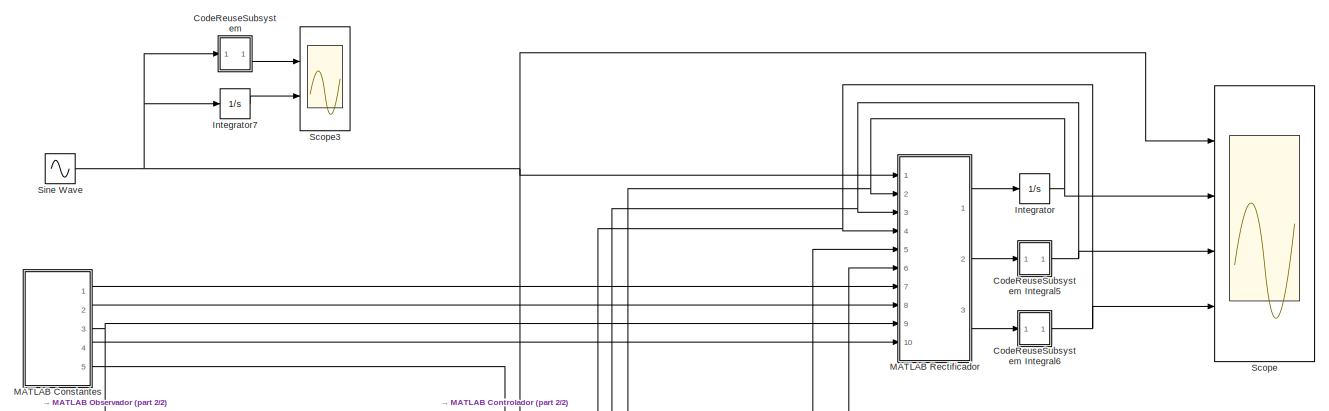
[diagram: root canvas - part 1/2, full width, top band]
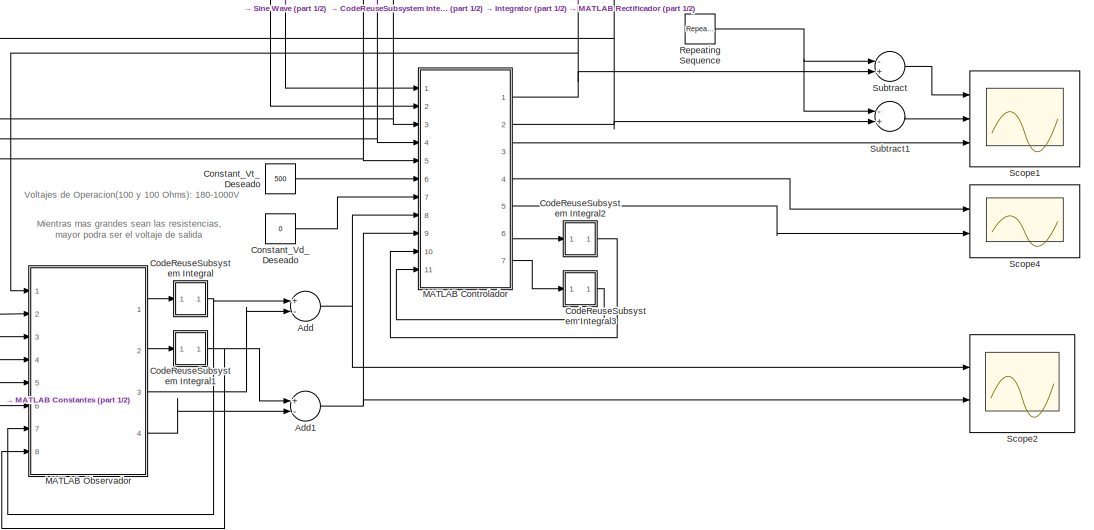
[diagram: root canvas - part 2/2, full width, bottom band]
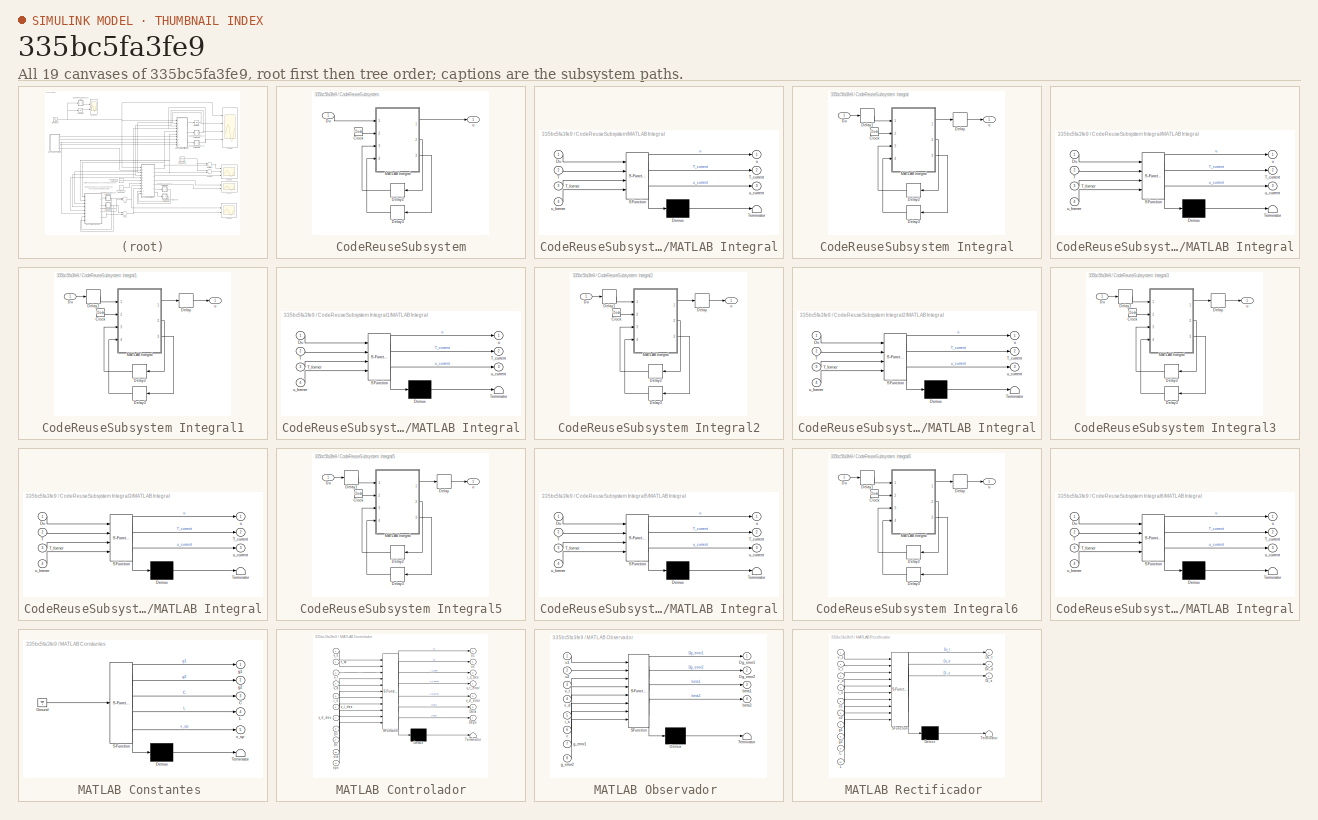
[diagram: thumbnail index - all 19 canvases of the model, root first then tree order]
MODEL slx_335bc5fa3fe9
KIND model
BLOCK [Sum] Add
  InputSameDT = off
  Inputs = +-
  OutDataTypeStr = Inherit: Inherit via internal rule
  Ports = [2, 1]
  SaturateOnIntegerOverflow = off
BLOCK [Sum] Add1
  InputSameDT = off
  Inputs = +-
  OutDataTypeStr = Inherit: Inherit via internal rule
  Ports = [2, 1]
  SaturateOnIntegerOverflow = off
BLOCK [SubSystem] CodeReuseSubsystem
  FunctionWithSeparateData = off
  MaskHideContents = off
  MinAlgLoopOccurrences = off
  Opaque = off
  Ports = [1, 1]
  PropExecContextOutsideSubsystem = off
  RTWFcnNameOpts = Use subsystem name
  RTWFileNameOpts = Use function name
  RTWSystemCode = Reusable function
  RequestExecContextInheritance = off
  TreatAsAtomicUnit = on
BLOCK [SubSystem] CodeReuseSubsystem Integral
  FunctionWithSeparateData = off
  MaskHideContents = off
  MinAlgLoopOccurrences = off
  Opaque = off
  Ports = [1, 1]
  PropExecContextOutsideSubsystem = off
  RTWFcnNameOpts = Use subsystem name
  RTWFileNameOpts = Use function name
  RTWSystemCode = Reusable function
  RequestExecContextInheritance = off
  TreatAsAtomicUnit = on
BLOCK [Clock] CodeReuseSubsystem Integral/Clock
BLOCK [Delay] CodeReuseSubsystem Integral/Delay
  DelayLength = 1
  InitialCondition = 0
  InputPortMap = u0
  Ports = [1, 1]
BLOCK [Delay] CodeReuseSubsystem Integral/Delay1
  DelayLength = 1
  InitialCondition = 0
  InputPortMap = u0
  Ports = [1, 1]
BLOCK [Delay] CodeReuseSubsystem Integral/Delay2
  DelayLength = 1
  InitialCondition = 0
  InputPortMap = u0
  Ports = [1, 1]
BLOCK [Delay] CodeReuseSubsystem Integral/Delay3
  DelayLength = 1
  InitialCondition = 0
  InputPortMap = u0
  Ports = [1, 1]
BLOCK [Inport] CodeReuseSubsystem Integral/Du
  IconDisplay = Port number
BLOCK [SubSystem] CodeReuseSubsystem Integral/MATLAB Integral
  ErrorFcn = Stateflow.Translate.translate
  FunctionWithSeparateData = off
  MaskHideContents = off
  MinAlgLoopOccurrences = off
  Opaque = off
  PermitHierarchicalResolution = ExplicitOnly
  Ports = [4, 3]
  PropExecContextOutsideSubsystem = off
  RTWSystemCode = Auto
  RequestExecContextInheritance = off
  SFBlockType = MATLAB Function
  TreatAsAtomicUnit = on
BLOCK [Demux] CodeReuseSubsystem Integral/MATLAB Integral/ Demux 
  Outputs = 1
  Ports = [1, 1]
BLOCK [S-Function] CodeReuseSubsystem Integral/MATLAB Integral/ SFunction 
  EnableBusSupport = on
  FunctionName = sf_sfun
  PortCounts = [4 4]
  Ports = [4, 4]
  Tag = Stateflow S-Function Tesis_Rectificador_Controlador_Observador_04 6
BLOCK [Terminator] CodeReuseSubsystem Integral/MATLAB Integral/ Terminator 
BLOCK [Inport] CodeReuseSubsystem Integral/MATLAB Integral/Du
  IconDisplay = Port number
BLOCK [Inport] CodeReuseSubsystem Integral/MATLAB Integral/T
  IconDisplay = Port number
  Port = 2
BLOCK [Outport] CodeReuseSubsystem Integral/MATLAB Integral/T_current
  IconDisplay = Port number
  Port = 2
BLOCK [Inport] CodeReuseSubsystem Integral/MATLAB Integral/T_former
  IconDisplay = Port number
  Port = 3
BLOCK [Outport] CodeReuseSubsystem Integral/MATLAB Integral/u
  IconDisplay = Port number
BLOCK [Outport] CodeReuseSubsystem Integral/MATLAB Integral/u_current
  IconDisplay = Port number
  Port = 3
BLOCK [Inport] CodeReuseSubsystem Integral/MATLAB Integral/u_former
  IconDisplay = Port number
  Port = 4
BLOCK [Outport] CodeReuseSubsystem Integral/u
  IconDisplay = Port number
BLOCK [SubSystem] CodeReuseSubsystem Integral1
  FunctionWithSeparateData = off
  MaskHideContents = off
  MinAlgLoopOccurrences = off
  Opaque = off
  Ports = [1, 1]
  PropExecContextOutsideSubsystem = off
  RTWFcnNameOpts = Use subsystem name
  RTWFileNameOpts = Use function name
  RTWSystemCode = Reusable function
  RequestExecContextInheritance = off
  TreatAsAtomicUnit = on
BLOCK [Clock] CodeReuseSubsystem Integral1/Clock
BLOCK [Delay] CodeReuseSubsystem Integral1/Delay
  DelayLength = 1
  InitialCondition = 0
  InputPortMap = u0
  Ports = [1, 1]
BLOCK [Delay] CodeReuseSubsystem Integral1/Delay1
  DelayLength = 1
  InitialCondition = 0
  InputPortMap = u0
  Ports = [1, 1]
BLOCK [Delay] CodeReuseSubsystem Integral1/Delay2
  DelayLength = 1
  InitialCondition = 0
  InputPortMap = u0
  Ports = [1, 1]
BLOCK [Delay] CodeReuseSubsystem Integral1/Delay3
  DelayLength = 1
  InitialCondition = 0
  InputPortMap = u0
  Ports = [1, 1]
BLOCK [Inport] CodeReuseSubsystem Integral1/Du
  IconDisplay = Port number
BLOCK [SubSystem] CodeReuseSubsystem Integral1/MATLAB Integral
  ErrorFcn = Stateflow.Translate.translate
  FunctionWithSeparateData = off
  MaskHideContents = off
  MinAlgLoopOccurrences = off
  Opaque = off
  PermitHierarchicalResolution = ExplicitOnly
  Ports = [4, 3]
  PropExecContextOutsideSubsystem = off
  RTWSystemCode = Auto
  RequestExecContextInheritance = off
  SFBlockType = MATLAB Function
  TreatAsAtomicUnit = on
BLOCK [Demux] CodeReuseSubsystem Integral1/MATLAB Integral/ Demux 
  Outputs = 1
  Ports = [1, 1]
BLOCK [S-Function] CodeReuseSubsystem Integral1/MATLAB Integral/ SFunction 
  EnableBusSupport = on
  FunctionName = sf_sfun
  PortCounts = [4 4]
  Ports = [4, 4]
  Tag = Stateflow S-Function Tesis_Rectificador_Controlador_Observador_04 7
BLOCK [Terminator] CodeReuseSubsystem Integral1/MATLAB Integral/ Terminator 
BLOCK [Inport] CodeReuseSubsystem Integral1/MATLAB Integral/Du
  IconDisplay = Port number
BLOCK [Inport] CodeReuseSubsystem Integral1/MATLAB Integral/T
  IconDisplay = Port number
  Port = 2
BLOCK [Outport] CodeReuseSubsystem Integral1/MATLAB Integral/T_current
  IconDisplay = Port number
  Port = 2
BLOCK [Inport] CodeReuseSubsystem Integral1/MATLAB Integral/T_former
  IconDisplay = Port number
  Port = 3
BLOCK [Outport] CodeReuseSubsystem Integral1/MATLAB Integral/u
  IconDisplay = Port number
BLOCK [Outport] CodeReuseSubsystem Integral1/MATLAB Integral/u_current
  IconDisplay = Port number
  Port = 3
BLOCK [Inport] CodeReuseSubsystem Integral1/MATLAB Integral/u_former
  IconDisplay = Port number
  Port = 4
BLOCK [Outport] CodeReuseSubsystem Integral1/u
  IconDisplay = Port number
BLOCK [SubSystem] CodeReuseSubsystem Integral2
  FunctionWithSeparateData = off
  MaskHideContents = off
  MinAlgLoopOccurrences = off
  Opaque = off
  Ports = [1, 1]
  PropExecContextOutsideSubsystem = off
  RTWFcnNameOpts = Use subsystem name
  RTWFileNameOpts = Use function name
  RTWSystemCode = Reusable function
  RequestExecContextInheritance = off
  TreatAsAtomicUnit = on
BLOCK [Clock] CodeReuseSubsystem Integral2/Clock
BLOCK [Delay] CodeReuseSubsystem Integral2/Delay
  DelayLength = 1
  InitialCondition = 0
  InputPortMap = u0
  Ports = [1, 1]
BLOCK [Delay] CodeReuseSubsystem Integral2/Delay1
  DelayLength = 1
  InitialCondition = 0
  InputPortMap = u0
  Ports = [1, 1]
BLOCK [Delay] CodeReuseSubsystem Integral2/Delay2
  DelayLength = 1
  InitialCondition = 0
  InputPortMap = u0
  Ports = [1, 1]
BLOCK [Delay] CodeReuseSubsystem Integral2/Delay3
  DelayLength = 1
  InitialCondition = 0
  InputPortMap = u0
  Ports = [1, 1]
BLOCK [Inport] CodeReuseSubsystem Integral2/Du
  IconDisplay = Port number
BLOCK [SubSystem] CodeReuseSubsystem Integral2/MATLAB Integral
  ErrorFcn = Stateflow.Translate.translate
  FunctionWithSeparateData = off
  MaskHideContents = off
  MinAlgLoopOccurrences = off
  Opaque = off
  PermitHierarchicalResolution = ExplicitOnly
  Ports = [4, 3]
  PropExecContextOutsideSubsystem = off
  RTWSystemCode = Auto
  RequestExecContextInheritance = off
  SFBlockType = MATLAB Function
  TreatAsAtomicUnit = on
BLOCK [Demux] CodeReuseSubsystem Integral2/MATLAB Integral/ Demux 
  Outputs = 1
  Ports = [1, 1]
BLOCK [S-Function] CodeReuseSubsystem Integral2/MATLAB Integral/ SFunction 
  EnableBusSupport = on
  FunctionName = sf_sfun
  PortCounts = [4 4]
  Ports = [4, 4]
  Tag = Stateflow S-Function Tesis_Rectificador_Controlador_Observador_04 8
BLOCK [Terminator] CodeReuseSubsystem Integral2/MATLAB Integral/ Terminator 
BLOCK [Inport] CodeReuseSubsystem Integral2/MATLAB Integral/Du
  IconDisplay = Port number
BLOCK [Inport] CodeReuseSubsystem Integral2/MATLAB Integral/T
  IconDisplay = Port number
  Port = 2
BLOCK [Outport] CodeReuseSubsystem Integral2/MATLAB Integral/T_current
  IconDisplay = Port number
  Port = 2
BLOCK [Inport] CodeReuseSubsystem Integral2/MATLAB Integral/T_former
  IconDisplay = Port number
  Port = 3
BLOCK [Outport] CodeReuseSubsystem Integral2/MATLAB Integral/u
  IconDisplay = Port number
BLOCK [Outport] CodeReuseSubsystem Integral2/MATLAB Integral/u_current
  IconDisplay = Port number
  Port = 3
BLOCK [Inport] CodeReuseSubsystem Integral2/MATLAB Integral/u_former
  IconDisplay = Port number
  Port = 4
BLOCK [Outport] CodeReuseSubsystem Integral2/u
  IconDisplay = Port number
BLOCK [SubSystem] CodeReuseSubsystem Integral3
  FunctionWithSeparateData = off
  MaskHideContents = off
  MinAlgLoopOccurrences = off
  Opaque = off
  Ports = [1, 1]
  PropExecContextOutsideSubsystem = off
  RTWFcnNameOpts = Use subsystem name
  RTWFileNameOpts = Use function name
  RTWSystemCode = Reusable function
  RequestExecContextInheritance = off
  TreatAsAtomicUnit = on
BLOCK [Clock] CodeReuseSubsystem Integral3/Clock
BLOCK [Delay] CodeReuseSubsystem Integral3/Delay
  DelayLength = 1
  InitialCondition = 0
  InputPortMap = u0
  Ports = [1, 1]
BLOCK [Delay] CodeReuseSubsystem Integral3/Delay1
  DelayLength = 1
  InitialCondition = 0
  InputPortMap = u0
  Ports = [1, 1]
BLOCK [Delay] CodeReuseSubsystem Integral3/Delay2
  DelayLength = 1
  InitialCondition = 0
  InputPortMap = u0
  Ports = [1, 1]
BLOCK [Delay] CodeReuseSubsystem Integral3/Delay3
  DelayLength = 1
  InitialCondition = 0
  InputPortMap = u0
  Ports = [1, 1]
BLOCK [Inport] CodeReuseSubsystem Integral3/Du
  IconDisplay = Port number
BLOCK [SubSystem] CodeReuseSubsystem Integral3/MATLAB Integral
  ErrorFcn = Stateflow.Translate.translate
  FunctionWithSeparateData = off
  MaskHideContents = off
  MinAlgLoopOccurrences = off
  Opaque = off
  PermitHierarchicalResolution = ExplicitOnly
  Ports = [4, 3]
  PropExecContextOutsideSubsystem = off
  RTWSystemCode = Auto
  RequestExecContextInheritance = off
  SFBlockType = MATLAB Function
  TreatAsAtomicUnit = on
BLOCK [Demux] CodeReuseSubsystem Integral3/MATLAB Integral/ Demux 
  Outputs = 1
  Ports = [1, 1]
BLOCK [S-Function] CodeReuseSubsystem Integral3/MATLAB Integral/ SFunction 
  EnableBusSupport = on
  FunctionName = sf_sfun
  PortCounts = [4 4]
  Ports = [4, 4]
  Tag = Stateflow S-Function Tesis_Rectificador_Controlador_Observador_04 9
BLOCK [Terminator] CodeReuseSubsystem Integral3/MATLAB Integral/ Terminator 
BLOCK [Inport] CodeReuseSubsystem Integral3/MATLAB Integral/Du
  IconDisplay = Port number
BLOCK [Inport] CodeReuseSubsystem Integral3/MATLAB Integral/T
  IconDisplay = Port number
  Port = 2
BLOCK [Outport] CodeReuseSubsystem Integral3/MATLAB Integral/T_current
  IconDisplay = Port number
  Port = 2
BLOCK [Inport] CodeReuseSubsystem Integral3/MATLAB Integral/T_former
  IconDisplay = Port number
  Port = 3
BLOCK [Outport] CodeReuseSubsystem Integral3/MATLAB Integral/u
  IconDisplay = Port number
BLOCK [Outport] CodeReuseSubsystem Integral3/MATLAB Integral/u_current
  IconDisplay = Port number
  Port = 3
BLOCK [Inport] CodeReuseSubsystem Integral3/MATLAB Integral/u_former
  IconDisplay = Port number
  Port = 4
BLOCK [Outport] CodeReuseSubsystem Integral3/u
  IconDisplay = Port number
BLOCK [SubSystem] CodeReuseSubsystem Integral5
  FunctionWithSeparateData = off
  MaskHideContents = off
  MinAlgLoopOccurrences = off
  Opaque = off
  Ports = [1, 1]
  PropExecContextOutsideSubsystem = off
  RTWFcnNameOpts = Use subsystem name
  RTWFileNameOpts = Use function name
  RTWSystemCode = Reusable function
  RequestExecContextInheritance = off
  TreatAsAtomicUnit = on
BLOCK [Clock] CodeReuseSubsystem Integral5/Clock
BLOCK [Delay] CodeReuseSubsystem Integral5/Delay
  DelayLength = 1
  InitialCondition = 1
  InputPortMap = u0
  Ports = [1, 1]
BLOCK [Delay] CodeReuseSubsystem Integral5/Delay1
  DelayLength = 1
  InitialCondition = 0
  InputPortMap = u0
  Ports = [1, 1]
BLOCK [Delay] CodeReuseSubsystem Integral5/Delay2
  DelayLength = 1
  InitialCondition = 0
  InputPortMap = u0
  Ports = [1, 1]
BLOCK [Delay] CodeReuseSubsystem Integral5/Delay3
  DelayLength = 1
  InitialCondition = 0
  InputPortMap = u0
  Ports = [1, 1]
BLOCK [Inport] CodeReuseSubsystem Integral5/Du
  IconDisplay = Port number
BLOCK [SubSystem] CodeReuseSubsystem Integral5/MATLAB Integral
  ErrorFcn = Stateflow.Translate.translate
  FunctionWithSeparateData = off
  MaskHideContents = off
  MinAlgLoopOccurrences = off
  Opaque = off
  PermitHierarchicalResolution = ExplicitOnly
  Ports = [4, 3]
  PropExecContextOutsideSubsystem = off
  RTWSystemCode = Auto
  RequestExecContextInheritance = off
  SFBlockType = MATLAB Function
  TreatAsAtomicUnit = on
BLOCK [Demux] CodeReuseSubsystem Integral5/MATLAB Integral/ Demux 
  Outputs = 1
  Ports = [1, 1]
BLOCK [S-Function] CodeReuseSubsystem Integral5/MATLAB Integral/ SFunction 
  EnableBusSupport = on
  FunctionName = sf_sfun
  PortCounts = [4 4]
  Ports = [4, 4]
  Tag = Stateflow S-Function Tesis_Rectificador_Controlador_Observador_04 11
BLOCK [Terminator] CodeReuseSubsystem Integral5/MATLAB Integral/ Terminator 
BLOCK [Inport] CodeReuseSubsystem Integral5/MATLAB Integral/Du
  IconDisplay = Port number
BLOCK [Inport] CodeReuseSubsystem Integral5/MATLAB Integral/T
  IconDisplay = Port number
  Port = 2
BLOCK [Outport] CodeReuseSubsystem Integral5/MATLAB Integral/T_current
  IconDisplay = Port number
  Port = 2
BLOCK [Inport] CodeReuseSubsystem Integral5/MATLAB Integral/T_former
  IconDisplay = Port number
  Port = 3
BLOCK [Outport] CodeReuseSubsystem Integral5/MATLAB Integral/u
  IconDisplay = Port number
BLOCK [Outport] CodeReuseSubsystem Integral5/MATLAB Integral/u_current
  IconDisplay = Port number
  Port = 3
BLOCK [Inport] CodeReuseSubsystem Integral5/MATLAB Integral/u_former
  IconDisplay = Port number
  Port = 4
BLOCK [Outport] CodeReuseSubsystem Integral5/u
  IconDisplay = Port number
BLOCK [SubSystem] CodeReuseSubsystem Integral6
  FunctionWithSeparateData = off
  MaskHideContents = off
  MinAlgLoopOccurrences = off
  Opaque = off
  Ports = [1, 1]
  PropExecContextOutsideSubsystem = off
  RTWFcnNameOpts = Use subsystem name
  RTWFileNameOpts = Use function name
  RTWSystemCode = Reusable function
  RequestExecContextInheritance = off
  TreatAsAtomicUnit = on
BLOCK [Clock] CodeReuseSubsystem Integral6/Clock
BLOCK [Delay] CodeReuseSubsystem Integral6/Delay
  DelayLength = 1
  InitialCondition = 1
  InputPortMap = u0
  Ports = [1, 1]
BLOCK [Delay] CodeReuseSubsystem Integral6/Delay1
  DelayLength = 1
  InitialCondition = 0
  InputPortMap = u0
  Ports = [1, 1]
BLOCK [Delay] CodeReuseSubsystem Integral6/Delay2
  DelayLength = 1
  InitialCondition = 0
  InputPortMap = u0
  Ports = [1, 1]
BLOCK [Delay] CodeReuseSubsystem Integral6/Delay3
  DelayLength = 1
  InitialCondition = 0
  InputPortMap = u0
  Ports = [1, 1]
BLOCK [Inport] CodeReuseSubsystem Integral6/Du
  IconDisplay = Port number
BLOCK [SubSystem] CodeReuseSubsystem Integral6/MATLAB Integral
  ErrorFcn = Stateflow.Translate.translate
  FunctionWithSeparateData = off
  MaskHideContents = off
  MinAlgLoopOccurrences = off
  Opaque = off
  PermitHierarchicalResolution = ExplicitOnly
  Ports = [4, 3]
  PropExecContextOutsideSubsystem = off
  RTWSystemCode = Auto
  RequestExecContextInheritance = off
  SFBlockType = MATLAB Function
  TreatAsAtomicUnit = on
BLOCK [Demux] CodeReuseSubsystem Integral6/MATLAB Integral/ Demux 
  Outputs = 1
  Ports = [1, 1]
BLOCK [S-Function] CodeReuseSubsystem Integral6/MATLAB Integral/ SFunction 
  EnableBusSupport = on
  FunctionName = sf_sfun
  PortCounts = [4 4]
  Ports = [4, 4]
  Tag = Stateflow S-Function Tesis_Rectificador_Controlador_Observador_04 12
BLOCK [Terminator] CodeReuseSubsystem Integral6/MATLAB Integral/ Terminator 
BLOCK [Inport] CodeReuseSubsystem Integral6/MATLAB Integral/Du
  IconDisplay = Port number
BLOCK [Inport] CodeReuseSubsystem Integral6/MATLAB Integral/T
  IconDisplay = Port number
  Port = 2
BLOCK [Outport] CodeReuseSubsystem Integral6/MATLAB Integral/T_current
  IconDisplay = Port number
  Port = 2
BLOCK [Inport] CodeReuseSubsystem Integral6/MATLAB Integral/T_former
  IconDisplay = Port number
  Port = 3
BLOCK [Outport] CodeReuseSubsystem Integral6/MATLAB Integral/u
  IconDisplay = Port number
BLOCK [Outport] CodeReuseSubsystem Integral6/MATLAB Integral/u_current
  IconDisplay = Port number
  Port = 3
BLOCK [Inport] CodeReuseSubsystem Integral6/MATLAB Integral/u_former
  IconDisplay = Port number
  Port = 4
BLOCK [Outport] CodeReuseSubsystem Integral6/u
  IconDisplay = Port number
BLOCK [Clock] CodeReuseSubsystem/Clock
BLOCK [Delay] CodeReuseSubsystem/Delay2
  DelayLength = 1
  InitialCondition = 0
  InputPortMap = u0
  Ports = [1, 1]
BLOCK [Delay] CodeReuseSubsystem/Delay3
  DelayLength = 1
  InitialCondition = 0
  InputPortMap = u0
  Ports = [1, 1]
BLOCK [Inport] CodeReuseSubsystem/Du
  IconDisplay = Port number
BLOCK [SubSystem] CodeReuseSubsystem/MATLAB Integral
  ErrorFcn = Stateflow.Translate.translate
  FunctionWithSeparateData = off
  MaskHideContents = off
  MinAlgLoopOccurrences = off
  Opaque = off
  PermitHierarchicalResolution = ExplicitOnly
  Ports = [4, 3]
  PropExecContextOutsideSubsystem = off
  RTWSystemCode = Auto
  RequestExecContextInheritance = off
  SFBlockType = MATLAB Function
  TreatAsAtomicUnit = on
BLOCK [Demux] CodeReuseSubsystem/MATLAB Integral/ Demux 
  Outputs = 1
  Ports = [1, 1]
BLOCK [S-Function] CodeReuseSubsystem/MATLAB Integral/ SFunction 
  EnableBusSupport = on
  FunctionName = sf_sfun
  PortCounts = [4 4]
  Ports = [4, 4]
  Tag = Stateflow S-Function Tesis_Rectificador_Controlador_Observador_04 3
BLOCK [Terminator] CodeReuseSubsystem/MATLAB Integral/ Terminator 
BLOCK [Inport] CodeReuseSubsystem/MATLAB Integral/Du
  IconDisplay = Port number
BLOCK [Inport] CodeReuseSubsystem/MATLAB Integral/T
  IconDisplay = Port number
  Port = 2
BLOCK [Outport] CodeReuseSubsystem/MATLAB Integral/T_current
  IconDisplay = Port number
  Port = 2
BLOCK [Inport] CodeReuseSubsystem/MATLAB Integral/T_former
  IconDisplay = Port number
  Port = 3
BLOCK [Outport] CodeReuseSubsystem/MATLAB Integral/u
  IconDisplay = Port number
BLOCK [Outport] CodeReuseSubsystem/MATLAB Integral/u_current
  IconDisplay = Port number
  Port = 3
BLOCK [Inport] CodeReuseSubsystem/MATLAB Integral/u_former
  IconDisplay = Port number
  Port = 4
BLOCK [Outport] CodeReuseSubsystem/u
  IconDisplay = Port number
BLOCK [Constant] Constant_Vd_Deseado
  Value = 0
BLOCK [Constant] Constant_Vt_Deseado
  Value = 500
BLOCK [Integrator] Integrator
  Ports = [1, 1]
BLOCK [Integrator] Integrator7
  InitialCondition = 0.02
  Ports = [1, 1]
BLOCK [SubSystem] MATLAB Constantes 
  ErrorFcn = Stateflow.Translate.translate
  FunctionWithSeparateData = off
  MaskHideContents = off
  MinAlgLoopOccurrences = off
  Opaque = off
  PermitHierarchicalResolution = ExplicitOnly
  Ports = [0, 5]
  PropExecContextOutsideSubsystem = off
  RTWSystemCode = Auto
  RequestExecContextInheritance = off
  SFBlockType = MATLAB Function
  TreatAsAtomicUnit = on
BLOCK [Demux] MATLAB Constantes / Demux 
  Outputs = 1
  Ports = [1, 1]
BLOCK [Ground] MATLAB Constantes / Ground 
BLOCK [S-Function] MATLAB Constantes / SFunction 
  EnableBusSupport = on
  FunctionName = sf_sfun
  PortCounts = [1 6]
  Ports = [1, 6]
  Tag = Stateflow S-Function Tesis_Rectificador_Controlador_Observador_04 4
BLOCK [Terminator] MATLAB Constantes / Terminator 
BLOCK [Outport] MATLAB Constantes /C
  IconDisplay = Port number
  Port = 3
BLOCK [Outport] MATLAB Constantes /L
  IconDisplay = Port number
  Port = 4
BLOCK [Outport] MATLAB Constantes /g1
  IconDisplay = Port number
BLOCK [Outport] MATLAB Constantes /g2
  IconDisplay = Port number
  Port = 2
BLOCK [Outport] MATLAB Constantes /v_sp
  IconDisplay = Port number
  Port = 5
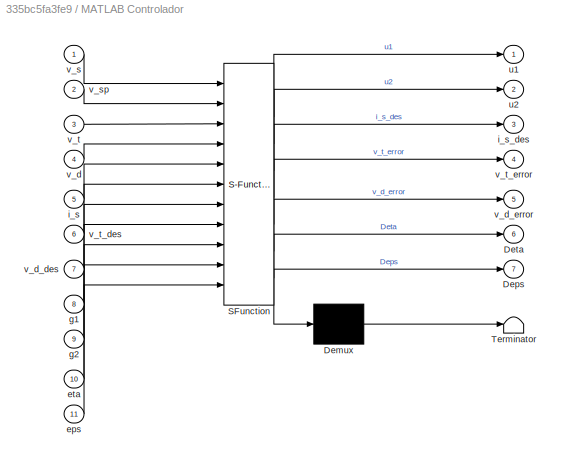
BLOCK [SubSystem] MATLAB Controlador
  ErrorFcn = Stateflow.Translate.translate
  FunctionWithSeparateData = off
  MaskHideContents = off
  MinAlgLoopOccurrences = off
  Opaque = off
  PermitHierarchicalResolution = ExplicitOnly
  Ports = [11, 7]
  PropExecContextOutsideSubsystem = off
  RTWSystemCode = Auto
  RequestExecContextInheritance = off
  SFBlockType = MATLAB Function
  TreatAsAtomicUnit = on
BLOCK [Demux] MATLAB Controlador/ Demux 
  Outputs = 1
  Ports = [1, 1]
BLOCK [S-Function] MATLAB Controlador/ SFunction 
  EnableBusSupport = on
  FunctionName = sf_sfun
  PortCounts = [11 8]
  Ports = [11, 8]
  Tag = Stateflow S-Function Tesis_Rectificador_Controlador_Observador_04 1
BLOCK [Terminator] MATLAB Controlador/ Terminator 
BLOCK [Outport] MATLAB Controlador/Deps
  IconDisplay = Port number
  Port = 7
BLOCK [Outport] MATLAB Controlador/Deta
  IconDisplay = Port number
  Port = 6
BLOCK [Inport] MATLAB Controlador/eps
  IconDisplay = Port number
  Port = 11
BLOCK [Inport] MATLAB Controlador/eta
  IconDisplay = Port number
  Port = 10
BLOCK [Inport] MATLAB Controlador/g1
  IconDisplay = Port number
  Port = 8
BLOCK [Inport] MATLAB Controlador/g2
  IconDisplay = Port number
  Port = 9
BLOCK [Inport] MATLAB Controlador/i_s
  IconDisplay = Port number
  Port = 5
BLOCK [Outport] MATLAB Controlador/i_s_des
  IconDisplay = Port number
  Port = 3
BLOCK [Outport] MATLAB Controlador/u1
  IconDisplay = Port number
BLOCK [Outport] MATLAB Controlador/u2
  IconDisplay = Port number
  Port = 2
BLOCK [Inport] MATLAB Controlador/v_d
  IconDisplay = Port number
  Port = 4
BLOCK [Inport] MATLAB Controlador/v_d_des
  IconDisplay = Port number
  Port = 7
BLOCK [Outport] MATLAB Controlador/v_d_error
  IconDisplay = Port number
  Port = 5
BLOCK [Inport] MATLAB Controlador/v_s
  IconDisplay = Port number
BLOCK [Inport] MATLAB Controlador/v_sp
  IconDisplay = Port number
  Port = 2
BLOCK [Inport] MATLAB Controlador/v_t
  IconDisplay = Port number
  Port = 3
BLOCK [Inport] MATLAB Controlador/v_t_des
  IconDisplay = Port number
  Port = 6
BLOCK [Outport] MATLAB Controlador/v_t_error
  IconDisplay = Port number
  Port = 4
BLOCK [SubSystem] MATLAB Observador 
  ErrorFcn = Stateflow.Translate.translate
  FunctionWithSeparateData = off
  MaskHideContents = off
  MinAlgLoopOccurrences = off
  Opaque = off
  PermitHierarchicalResolution = ExplicitOnly
  Ports = [8, 4]
  PropExecContextOutsideSubsystem = off
  RTWSystemCode = Auto
  RequestExecContextInheritance = off
  SFBlockType = MATLAB Function
  TreatAsAtomicUnit = on
BLOCK [Demux] MATLAB Observador / Demux 
  Outputs = 1
  Ports = [1, 1]
BLOCK [S-Function] MATLAB Observador / SFunction 
  EnableBusSupport = on
  FunctionName = sf_sfun
  PortCounts = [8 5]
  Ports = [8, 5]
  Tag = Stateflow S-Function Tesis_Rectificador_Controlador_Observador_04 5
BLOCK [Terminator] MATLAB Observador / Terminator 
BLOCK [Outport] MATLAB Observador /Dg_error1
  IconDisplay = Port number
BLOCK [Outport] MATLAB Observador /Dg_error2
  IconDisplay = Port number
  Port = 2
BLOCK [Outport] MATLAB Observador /beta1
  IconDisplay = Port number
  Port = 3
BLOCK [Outport] MATLAB Observador /beta2
  IconDisplay = Port number
  Port = 4
BLOCK [Inport] MATLAB Observador /c
  IconDisplay = Port number
  Port = 6
BLOCK [Inport] MATLAB Observador /g_error1
  IconDisplay = Port number
  Port = 7
BLOCK [Inport] MATLAB Observador /g_error2
  IconDisplay = Port number
  Port = 8
BLOCK [Inport] MATLAB Observador /i_s
  IconDisplay = Port number
  Port = 5
BLOCK [Inport] MATLAB Observador /u1
  IconDisplay = Port number
BLOCK [Inport] MATLAB Observador /u2
  IconDisplay = Port number
  Port = 2
BLOCK [Inport] MATLAB Observador /v_d
  IconDisplay = Port number
  Port = 4
BLOCK [Inport] MATLAB Observador /v_t
  IconDisplay = Port number
  Port = 3
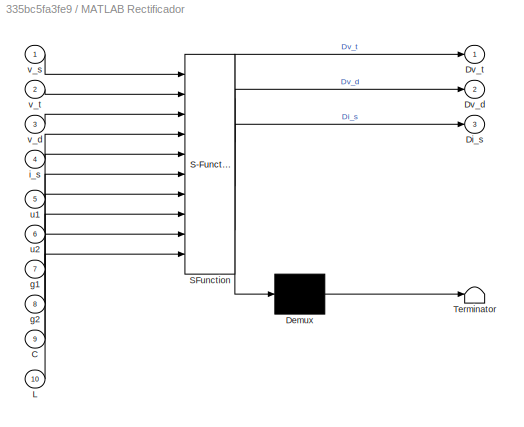
BLOCK [SubSystem] MATLAB Rectificador 
  ErrorFcn = Stateflow.Translate.translate
  FunctionWithSeparateData = off
  MaskHideContents = off
  MinAlgLoopOccurrences = off
  Opaque = off
  PermitHierarchicalResolution = ExplicitOnly
  Ports = [10, 3]
  PropExecContextOutsideSubsystem = off
  RTWSystemCode = Auto
  RequestExecContextInheritance = off
  SFBlockType = MATLAB Function
  TreatAsAtomicUnit = on
BLOCK [Demux] MATLAB Rectificador / Demux 
  Outputs = 1
  Ports = [1, 1]
BLOCK [S-Function] MATLAB Rectificador / SFunction 
  EnableBusSupport = on
  FunctionName = sf_sfun
  PortCounts = [10 4]
  Ports = [10, 4]
  Tag = Stateflow S-Function Tesis_Rectificador_Controlador_Observador_04 2
BLOCK [Terminator] MATLAB Rectificador / Terminator 
BLOCK [Inport] MATLAB Rectificador /C
  IconDisplay = Port number
  Port = 9
BLOCK [Outport] MATLAB Rectificador /Di_s
  IconDisplay = Port number
  Port = 3
BLOCK [Outport] MATLAB Rectificador /Dv_d
  IconDisplay = Port number
  Port = 2
BLOCK [Outport] MATLAB Rectificador /Dv_t
  IconDisplay = Port number
BLOCK [Inport] MATLAB Rectificador /L
  IconDisplay = Port number
  Port = 10
BLOCK [Inport] MATLAB Rectificador /g1
  IconDisplay = Port number
  Port = 7
BLOCK [Inport] MATLAB Rectificador /g2
  IconDisplay = Port number
  Port = 8
BLOCK [Inport] MATLAB Rectificador /i_s
  IconDisplay = Port number
  Port = 4
BLOCK [Inport] MATLAB Rectificador /u1
  IconDisplay = Port number
  Port = 5
BLOCK [Inport] MATLAB Rectificador /u2
  IconDisplay = Port number
  Port = 6
BLOCK [Inport] MATLAB Rectificador /v_d
  IconDisplay = Port number
  Port = 3
BLOCK [Inport] MATLAB Rectificador /v_s
  IconDisplay = Port number
BLOCK [Inport] MATLAB Rectificador /v_t
  IconDisplay = Port number
  Port = 2
BLOCK [Reference] Repeating Sequence  REF=simulink/Sources/Repeating
Sequence
  Ports = [0, 1]
  SourceBlock = simulink/Sources/Repeating\nSequence
  SourceType = Repeating table
  rep_seq_t = [0 1.655e-5]
  rep_seq_y = [0 1]
BLOCK [Scope] Scope
  DataFormat = StructureWithTime
  Floating = off
  LimitDataPoints = off
  NumInputPorts = 4
  Ports = [4]
  SampleTime = 0
  ShowLegends = off
  TimeRange = 0.5
  YMax = 200~600~-1.325~25
  YMin = -200~425~-1.525~-30
  ZoomMode = yonly
BLOCK [Scope] Scope1
  DataFormat = StructureWithTime
  Floating = off
  LimitDataPoints = off
  NumInputPorts = 3
  Ports = [3]
  SampleTime = 0
  SaveName = ScopeData1
  ShowLegends = off
  TimeRange = 1
  YMax = 350~350~1.5
  YMin = -350~-350~-1.5
  ZoomMode = xonly
BLOCK [Scope] Scope2
  DataFormat = StructureWithTime
  Floating = off
  LimitDataPoints = off
  NumInputPorts = 2
  Ports = [2]
  SampleTime = 0
  SaveName = ScopeData3
  ShowLegends = off
  TimeRange = 0.7000000000000001
  YMax = 0.012~0.02
  YMin = -0.002~-0.005
  ZoomMode = yonly
BLOCK [Scope] Scope3
  DataFormat = StructureWithTime
  Floating = off
  LimitDataPoints = off
  NumInputPorts = 2
  Ports = [2]
  SampleTime = 0
  SaveName = ScopeData4
  ShowLegends = off
  YMax = 5~5
  YMin = -5~-5
  ZoomMode = yonly
BLOCK [Scope] Scope4
  DataFormat = StructureWithTime
  Floating = off
  LimitDataPoints = off
  NumInputPorts = 2
  Ports = [2]
  SampleTime = 0
  SaveName = ScopeData2
  ShowLegends = off
  YMax = -118~-0.945
  YMin = -129~-1.035
BLOCK [Sin] Sine Wave
  Amplitude = 180
  Frequency = 120*pi
  Ports = [0, 1]
  SampleTime = 0
BLOCK [Sum] Subtract
  InputSameDT = off
  Inputs = -+
  OutDataTypeStr = Inherit: Inherit via internal rule
  Ports = [2, 1]
  SaturateOnIntegerOverflow = off
BLOCK [Sum] Subtract1
  InputSameDT = off
  Inputs = -+
  OutDataTypeStr = Inherit: Inherit via internal rule
  Ports = [2, 1]
  SaturateOnIntegerOverflow = off
ANNOTATION (root): Mientras mas grandes sean las resistencias, mayor podra ser el voltaje de salida
ANNOTATION (root): Voltajes de Operacion(100 y 100 Ohms): 180-1000V
NET Add1:1 -> MATLAB Controlador:9, Scope2:2
NET Add:1 -> MATLAB Controlador:8, Scope2:1
LINE CodeReuseSubsystem Integral/Clock:1 -> CodeReuseSubsystem Integral/MATLAB Integral:2
LINE CodeReuseSubsystem Integral/Delay1:1 -> CodeReuseSubsystem Integral/MATLAB Integral:1
LINE CodeReuseSubsystem Integral/Delay2:1 -> CodeReuseSubsystem Integral/MATLAB Integral:3
LINE CodeReuseSubsystem Integral/Delay3:1 -> CodeReuseSubsystem Integral/MATLAB Integral:4
LINE CodeReuseSubsystem Integral/Delay:1 -> CodeReuseSubsystem Integral/u:1
LINE CodeReuseSubsystem Integral/Du:1 -> CodeReuseSubsystem Integral/Delay1:1
LINE CodeReuseSubsystem Integral/MATLAB Integral:1 -> CodeReuseSubsystem Integral/Delay:1
LINE CodeReuseSubsystem Integral/MATLAB Integral:2 -> CodeReuseSubsystem Integral/Delay2:1
LINE CodeReuseSubsystem Integral/MATLAB Integral:3 -> CodeReuseSubsystem Integral/Delay3:1
LINE CodeReuseSubsystem Integral1/Clock:1 -> CodeReuseSubsystem Integral1/MATLAB Integral:2
LINE CodeReuseSubsystem Integral1/Delay1:1 -> CodeReuseSubsystem Integral1/MATLAB Integral:1
LINE CodeReuseSubsystem Integral1/Delay2:1 -> CodeReuseSubsystem Integral1/MATLAB Integral:3
LINE CodeReuseSubsystem Integral1/Delay3:1 -> CodeReuseSubsystem Integral1/MATLAB Integral:4
LINE CodeReuseSubsystem Integral1/Delay:1 -> CodeReuseSubsystem Integral1/u:1
LINE CodeReuseSubsystem Integral1/Du:1 -> CodeReuseSubsystem Integral1/Delay1:1
LINE CodeReuseSubsystem Integral1/MATLAB Integral:1 -> CodeReuseSubsystem Integral1/Delay:1
LINE CodeReuseSubsystem Integral1/MATLAB Integral:2 -> CodeReuseSubsystem Integral1/Delay2:1
LINE CodeReuseSubsystem Integral1/MATLAB Integral:3 -> CodeReuseSubsystem Integral1/Delay3:1
NET CodeReuseSubsystem Integral1:1 -> Add1:1, MATLAB Observador :8
LINE CodeReuseSubsystem Integral2/Clock:1 -> CodeReuseSubsystem Integral2/MATLAB Integral:2
LINE CodeReuseSubsystem Integral2/Delay1:1 -> CodeReuseSubsystem Integral2/MATLAB Integral:1
LINE CodeReuseSubsystem Integral2/Delay2:1 -> CodeReuseSubsystem Integral2/MATLAB Integral:3
LINE CodeReuseSubsystem Integral2/Delay3:1 -> CodeReuseSubsystem Integral2/MATLAB Integral:4
LINE CodeReuseSubsystem Integral2/Delay:1 -> CodeReuseSubsystem Integral2/u:1
LINE CodeReuseSubsystem Integral2/Du:1 -> CodeReuseSubsystem Integral2/Delay1:1
LINE CodeReuseSubsystem Integral2/MATLAB Integral:1 -> CodeReuseSubsystem Integral2/Delay:1
LINE CodeReuseSubsystem Integral2/MATLAB Integral:2 -> CodeReuseSubsystem Integral2/Delay2:1
LINE CodeReuseSubsystem Integral2/MATLAB Integral:3 -> CodeReuseSubsystem Integral2/Delay3:1
LINE CodeReuseSubsystem Integral2:1 -> MATLAB Controlador:10
LINE CodeReuseSubsystem Integral3/Clock:1 -> CodeReuseSubsystem Integral3/MATLAB Integral:2
LINE CodeReuseSubsystem Integral3/Delay1:1 -> CodeReuseSubsystem Integral3/MATLAB Integral:1
LINE CodeReuseSubsystem Integral3/Delay2:1 -> CodeReuseSubsystem Integral3/MATLAB Integral:3
LINE CodeReuseSubsystem Integral3/Delay3:1 -> CodeReuseSubsystem Integral3/MATLAB Integral:4
LINE CodeReuseSubsystem Integral3/Delay:1 -> CodeReuseSubsystem Integral3/u:1
LINE CodeReuseSubsystem Integral3/Du:1 -> CodeReuseSubsystem Integral3/Delay1:1
LINE CodeReuseSubsystem Integral3/MATLAB Integral:1 -> CodeReuseSubsystem Integral3/Delay:1
LINE CodeReuseSubsystem Integral3/MATLAB Integral:2 -> CodeReuseSubsystem Integral3/Delay2:1
LINE CodeReuseSubsystem Integral3/MATLAB Integral:3 -> CodeReuseSubsystem Integral3/Delay3:1
LINE CodeReuseSubsystem Integral3:1 -> MATLAB Controlador:11
LINE CodeReuseSubsystem Integral5/Clock:1 -> CodeReuseSubsystem Integral5/MATLAB Integral:2
LINE CodeReuseSubsystem Integral5/Delay1:1 -> CodeReuseSubsystem Integral5/MATLAB Integral:1
LINE CodeReuseSubsystem Integral5/Delay2:1 -> CodeReuseSubsystem Integral5/MATLAB Integral:3
LINE CodeReuseSubsystem Integral5/Delay3:1 -> CodeReuseSubsystem Integral5/MATLAB Integral:4
LINE CodeReuseSubsystem Integral5/Delay:1 -> CodeReuseSubsystem Integral5/u:1
LINE CodeReuseSubsystem Integral5/Du:1 -> CodeReuseSubsystem Integral5/Delay1:1
LINE CodeReuseSubsystem Integral5/MATLAB Integral:1 -> CodeReuseSubsystem Integral5/Delay:1
LINE CodeReuseSubsystem Integral5/MATLAB Integral:2 -> CodeReuseSubsystem Integral5/Delay2:1
LINE CodeReuseSubsystem Integral5/MATLAB Integral:3 -> CodeReuseSubsystem Integral5/Delay3:1
NET CodeReuseSubsystem Integral5:1 -> MATLAB Controlador:4, MATLAB Observador :4, MATLAB Rectificador :3, Scope:3
LINE CodeReuseSubsystem Integral6/Clock:1 -> CodeReuseSubsystem Integral6/MATLAB Integral:2
LINE CodeReuseSubsystem Integral6/Delay1:1 -> CodeReuseSubsystem Integral6/MATLAB Integral:1
LINE CodeReuseSubsystem Integral6/Delay2:1 -> CodeReuseSubsystem Integral6/MATLAB Integral:3
LINE CodeReuseSubsystem Integral6/Delay3:1 -> CodeReuseSubsystem Integral6/MATLAB Integral:4
LINE CodeReuseSubsystem Integral6/Delay:1 -> CodeReuseSubsystem Integral6/u:1
LINE CodeReuseSubsystem Integral6/Du:1 -> CodeReuseSubsystem Integral6/Delay1:1
LINE CodeReuseSubsystem Integral6/MATLAB Integral:1 -> CodeReuseSubsystem Integral6/Delay:1
LINE CodeReuseSubsystem Integral6/MATLAB Integral:2 -> CodeReuseSubsystem Integral6/Delay2:1
LINE CodeReuseSubsystem Integral6/MATLAB Integral:3 -> CodeReuseSubsystem Integral6/Delay3:1
NET CodeReuseSubsystem Integral6:1 -> MATLAB Controlador:5, MATLAB Observador :5, MATLAB Rectificador :4, Scope:4
NET CodeReuseSubsystem Integral:1 -> Add:1, MATLAB Observador :7
LINE CodeReuseSubsystem/Clock:1 -> CodeReuseSubsystem/MATLAB Integral:2
LINE CodeReuseSubsystem/Delay2:1 -> CodeReuseSubsystem/MATLAB Integral:3
LINE CodeReuseSubsystem/Delay3:1 -> CodeReuseSubsystem/MATLAB Integral:4
LINE CodeReuseSubsystem/Du:1 -> CodeReuseSubsystem/MATLAB Integral:1
LINE CodeReuseSubsystem/MATLAB Integral:1 -> CodeReuseSubsystem/u:1
LINE CodeReuseSubsystem/MATLAB Integral:2 -> CodeReuseSubsystem/Delay2:1
LINE CodeReuseSubsystem/MATLAB Integral:3 -> CodeReuseSubsystem/Delay3:1
LINE CodeReuseSubsystem:1 -> Scope3:1
LINE Constant_Vd_Deseado:1 -> MATLAB Controlador:7
LINE Constant_Vt_Deseado:1 -> MATLAB Controlador:6
LINE Integrator7:1 -> Scope3:2
NET Integrator:1 -> MATLAB Controlador:3, MATLAB Observador :3, MATLAB Rectificador :2, Scope:2
LINE MATLAB Constantes :1 -> MATLAB Rectificador :7
LINE MATLAB Constantes :2 -> MATLAB Rectificador :8
NET MATLAB Constantes :3 -> MATLAB Observador :6, MATLAB Rectificador :9
LINE MATLAB Constantes :4 -> MATLAB Rectificador :10
LINE MATLAB Constantes :5 -> MATLAB Controlador:2
NET MATLAB Controlador:1 -> MATLAB Observador :1, MATLAB Rectificador :5, Subtract:2
NET MATLAB Controlador:2 -> MATLAB Observador :2, MATLAB Rectificador :6, Subtract1:2
LINE MATLAB Controlador:3 -> Scope1:3
LINE MATLAB Controlador:4 -> Scope4:1
LINE MATLAB Controlador:5 -> Scope4:2
LINE MATLAB Controlador:6 -> CodeReuseSubsystem Integral2:1
LINE MATLAB Controlador:7 -> CodeReuseSubsystem Integral3:1
LINE MATLAB Observador :1 -> CodeReuseSubsystem Integral:1
LINE MATLAB Observador :2 -> CodeReuseSubsystem Integral1:1
LINE MATLAB Observador :3 -> Add:2
LINE MATLAB Observador :4 -> Add1:2
LINE MATLAB Rectificador :1 -> Integrator:1
LINE MATLAB Rectificador :2 -> CodeReuseSubsystem Integral5:1
LINE MATLAB Rectificador :3 -> CodeReuseSubsystem Integral6:1
NET Repeating Sequence:1 -> Subtract1:1, Subtract:1
NET Sine Wave:1 -> CodeReuseSubsystem:1, Integrator7:1, MATLAB Controlador:1, MATLAB Rectificador :1, Scope:1
LINE Subtract1:1 -> Scope1:2
LINE Subtract:1 -> Scope1:1
note: NET lines group one-source signal fan-out (src -> all destinations, sorted); 1:1 wires keep LINE
